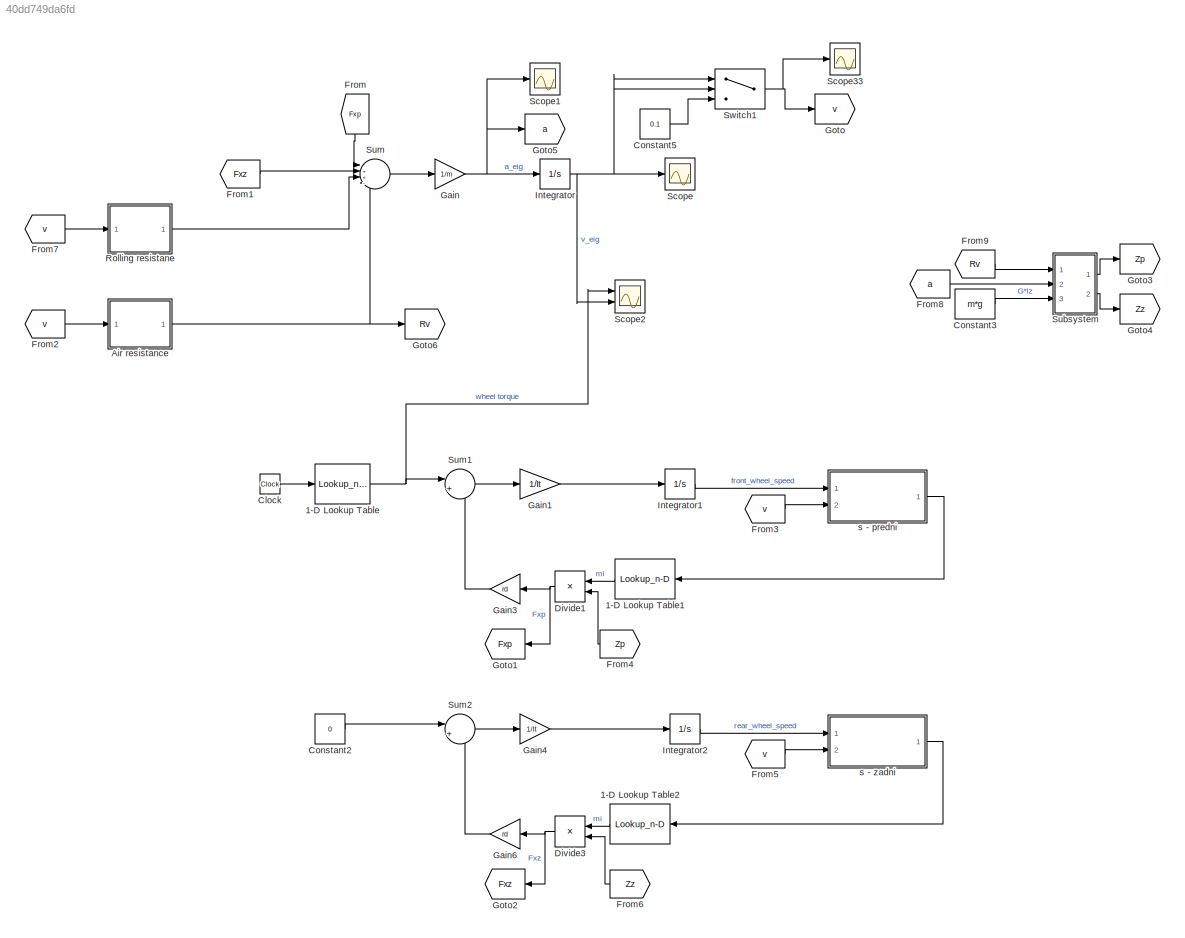
MODEL slx_40dd749da6fd
KIND model
CONFIG AbsTol = auto
CONFIG EnableMultiTasking = off
CONFIG FixedStep = auto
CONFIG MaxStep = auto
CONFIG MinStep = auto
CONFIG RelTol = 1e-9
CONFIG SampleTimeConstraint = Unconstrained
CONFIG SolverName = VariableStepAuto
CONFIG StartTime = 0.0
CONFIG StopTime = time
BLOCK [Lookup_n-D] 1-D Lookup Table
  BreakpointsForDimension1 = chosen_input_t
  InputPortMap = u0
  InternalRulePriority = Speed
  NumberOfTableDimensions = 1
  Ports = [1, 1]
  RndMeth = Simplest
  Table = chosen_input_T
BLOCK [Lookup_n-D] 1-D Lookup Table1
  BreakpointsForDimension1 = s
  InputPortMap = u0
  InternalRulePriority = Speed
  NameLocation = top
  NumberOfTableDimensions = 1
  Ports = [1, 1]
  RndMeth = Simplest
  Table = mi
BLOCK [Lookup_n-D] 1-D Lookup Table2
  BreakpointsForDimension1 = s
  InputPortMap = u0
  InternalRulePriority = Speed
  NameLocation = top
  NumberOfTableDimensions = 1
  Ports = [1, 1]
  RndMeth = Simplest
  Table = mi
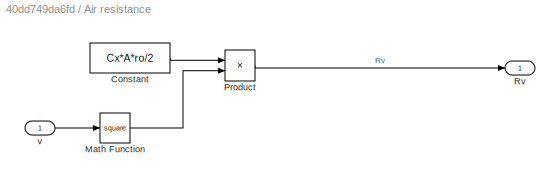
BLOCK [SubSystem] Air resistance
  Ports = [1, 1]
  RequestExecContextInheritance = off
BLOCK [Constant] Air resistance/Constant
  Value = Cx*A*ro/2
BLOCK [Math] Air resistance/Math Function
  Operator = square
  Ports = [1, 1]
BLOCK [Product] Air resistance/Product
  Ports = [2, 1]
BLOCK [Outport] Air resistance/Rv
BLOCK [Inport] Air resistance/v
BLOCK [Clock] Clock
BLOCK [Constant] Constant2
  Value = 0
BLOCK [Constant] Constant3
  Value = m*g
BLOCK [Constant] Constant5
  Value = 0.1
BLOCK [Product] Divide1
  Inputs = **
  NameLocation = top
  Ports = [2, 1]
BLOCK [Product] Divide3
  Inputs = **
  NameLocation = top
  Ports = [2, 1]
BLOCK [From] From
  GotoTag = Fxp
  NameLocation = left
BLOCK [From] From1
  GotoTag = Fxz
BLOCK [From] From2
  GotoTag = v
BLOCK [From] From3
  GotoTag = v
BLOCK [From] From4
  GotoTag = Zp
  NameLocation = top
BLOCK [From] From5
  GotoTag = v
BLOCK [From] From6
  GotoTag = Zz
  NameLocation = top
BLOCK [From] From7
  GotoTag = v
BLOCK [From] From8
  GotoTag = a
BLOCK [From] From9
  GotoTag = Rv
BLOCK [Gain] Gain
  Gain = 1/m
BLOCK [Gain] Gain1
  Gain = 1/It
BLOCK [Gain] Gain3
  Gain = rd
  NameLocation = top
BLOCK [Gain] Gain4
  Gain = 1/It
BLOCK [Gain] Gain6
  Gain = rd
  NameLocation = top
BLOCK [Goto] Goto
  GotoTag = v
BLOCK [Goto] Goto1
  GotoTag = Fxp
  NameLocation = top
BLOCK [Goto] Goto2
  GotoTag = Fxz
  NameLocation = top
BLOCK [Goto] Goto3
  GotoTag = Zp
BLOCK [Goto] Goto4
  GotoTag = Zz
BLOCK [Goto] Goto5
  GotoTag = a
BLOCK [Goto] Goto6
  GotoTag = Rv
BLOCK [Integrator] Integrator
  InitialCondition = v0_sim
  Ports = [1, 1]
  ZeroCross = off
BLOCK [Integrator] Integrator1
  InitialCondition = v0_sim/rd
  Ports = [1, 1]
BLOCK [Integrator] Integrator2
  InitialCondition = v0_sim/rd
  Ports = [1, 1]
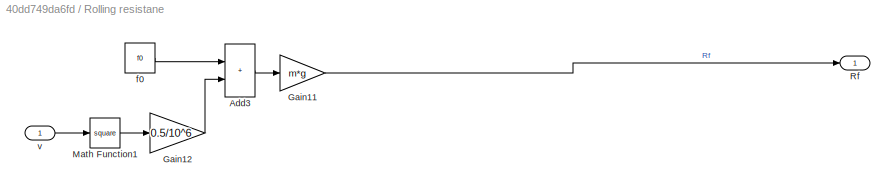
BLOCK [SubSystem] Rolling resistane
  Ports = [1, 1]
  RequestExecContextInheritance = off
BLOCK [Sum] Rolling resistane/Add3
  IconShape = rectangular
  Ports = [2, 1]
BLOCK [Gain] Rolling resistane/Gain11
  Gain = m*g
BLOCK [Gain] Rolling resistane/Gain12
  Gain = 0.5/10^6
BLOCK [Math] Rolling resistane/Math Function1
  Operator = square
  Ports = [1, 1]
BLOCK [Outport] Rolling resistane/Rf
BLOCK [Constant] Rolling resistane/f0
  Value = f0
BLOCK [Inport] Rolling resistane/v
BLOCK [Scope] Scope
  Floating = off
  NumInputPorts = 1
  Ports = [1]
  ScopeSpecificationString = Simulink.scopes.TimeScopeBlockCfg('CurrentConfiguration', extmgr.ConfigurationSet(extmgr.Configuration('Core','General UI',true),extmgr.Configuration('Core','Source UI',true),extmgr.Configuration('Sources','WiredSimulink',true,'DataLoggingVariableName','ScopeData1'),extmgr.Configuration('Visuals','Time Domain',true,'SerializedDisplays',{struct('MinYLimReal','-8.84334','MaxYLimReal','38.97146','YLa...<+1441ch>
BLOCK [Scope] Scope1
  Floating = off
  NumInputPorts = 1
  Ports = [1]
  ScopeSpecificationString = Simulink.scopes.TimeScopeBlockCfg('CurrentConfiguration', extmgr.ConfigurationSet(extmgr.Configuration('Core','General UI',true),extmgr.Configuration('Core','Source UI',true),extmgr.Configuration('Sources','WiredSimulink',true,'DataLoggingVariableName','ScopeData2'),extmgr.Configuration('Visuals','Time Domain',true,'SerializedDisplays',{struct('MinYLimReal','-0.67119','MaxYLimReal','3.73158','YLab...<+1412ch>
BLOCK [Scope] Scope2
  Floating = off
  NumInputPorts = 2
  Ports = [2]
  ScopeSpecificationString = Simulink.scopes.TimeScopeBlockCfg('CurrentConfiguration', extmgr.ConfigurationSet(extmgr.Configuration('Core','General UI',true),extmgr.Configuration('Core','Source UI',true),extmgr.Configuration('Sources','WiredSimulink',true),extmgr.Configuration('Visuals','Time Domain',true,'SerializedDisplays',{struct('MinYLimReal','-250.00000','MaxYLimReal','2250.00000','YLabelReal','','MinYLimMag',' 0.00000'...<+2058ch>
BLOCK [Scope] Scope33
  Floating = off
  NumInputPorts = 1
  Ports = [1]
  ScopeSpecificationString = Simulink.scopes.TimeScopeBlockCfg('CurrentConfiguration', extmgr.ConfigurationSet(extmgr.Configuration('Core','General UI',true),extmgr.Configuration('Core','Source UI',true),extmgr.Configuration('Sources','WiredSimulink',true,'DataLoggingVariableName','ScopeData28'),extmgr.Configuration('Visuals','Time Domain',true,'SerializedDisplays',{struct('MinYLimReal','-3.05838','MaxYLimReal','28.52545','YL...<+1444ch>
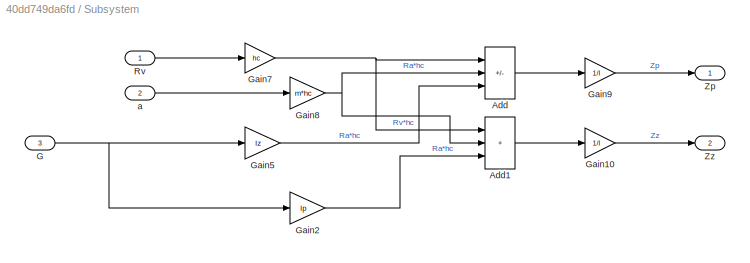
BLOCK [SubSystem] Subsystem
  Ports = [3, 2]
  RequestExecContextInheritance = off
BLOCK [Sum] Subsystem/Add
  IconShape = rectangular
  Inputs = --+
  Ports = [3, 1]
BLOCK [Sum] Subsystem/Add1
  IconShape = rectangular
  Inputs = +++
  Ports = [3, 1]
BLOCK [Inport] Subsystem/G
  Port = 3
BLOCK [Gain] Subsystem/Gain10
  Gain = 1/l
BLOCK [Gain] Subsystem/Gain2
  Gain = lp
BLOCK [Gain] Subsystem/Gain5
  Gain = lz
BLOCK [Gain] Subsystem/Gain7
  Gain = hc
BLOCK [Gain] Subsystem/Gain8
  Gain = m*hc
BLOCK [Gain] Subsystem/Gain9
  Gain = 1/l
BLOCK [Inport] Subsystem/Rv
BLOCK [Outport] Subsystem/Zp
BLOCK [Outport] Subsystem/Zz
  Port = 2
BLOCK [Inport] Subsystem/a
  Port = 2
BLOCK [Sum] Sum
  Inputs = |++--
  Ports = [4, 1]
BLOCK [Sum] Sum1
  Inputs = |+-
  Ports = [2, 1]
BLOCK [Sum] Sum2
  Inputs = |+-
  Ports = [2, 1]
BLOCK [Switch] Switch1
  Criteria = u2 > Threshold
  InputSameDT = off
  SaturateOnIntegerOverflow = off
  Threshold = 0.1
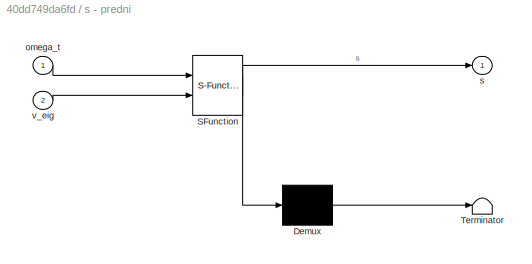
BLOCK [SubSystem] s - predni
  ErrorFcn = Stateflow.Translate.translate
  PermitHierarchicalResolution = ExplicitOnly
  Ports = [2, 1]
  RequestExecContextInheritance = off
  SFBlockType = MATLAB Function
  TreatAsAtomicUnit = on
BLOCK [Demux] s - predni/ Demux 
  Outputs = 1
  Ports = [1, 1]
BLOCK [S-Function] s - predni/ SFunction 
  EnableBusSupport = on
  FunctionName = sf_sfun
  PortCounts = [2 2]
  Ports = [2, 2]
  SFcnIsStateOwnerBlock = off
  SFunctionDeploymentMode = off
  Tag = Stateflow S-Function 2
BLOCK [Terminator] s - predni/ Terminator 
BLOCK [Inport] s - predni/omega_t
BLOCK [Outport] s - predni/s
BLOCK [Inport] s - predni/v_eig
  Port = 2
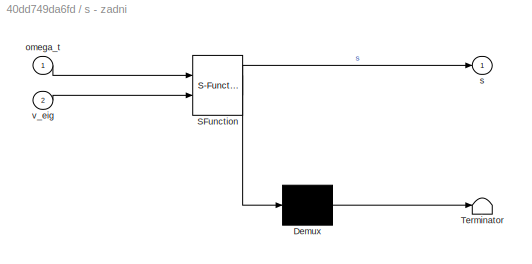
BLOCK [SubSystem] s - zadni
  ErrorFcn = Stateflow.Translate.translate
  PermitHierarchicalResolution = ExplicitOnly
  Ports = [2, 1]
  RequestExecContextInheritance = off
  SFBlockType = MATLAB Function
  TreatAsAtomicUnit = on
BLOCK [Demux] s - zadni/ Demux 
  Outputs = 1
  Ports = [1, 1]
BLOCK [S-Function] s - zadni/ SFunction 
  EnableBusSupport = on
  FunctionName = sf_sfun
  PortCounts = [2 2]
  Ports = [2, 2]
  SFcnIsStateOwnerBlock = off
  SFunctionDeploymentMode = off
  Tag = Stateflow S-Function 1
BLOCK [Terminator] s - zadni/ Terminator 
BLOCK [Inport] s - zadni/omega_t
BLOCK [Outport] s - zadni/s
BLOCK [Inport] s - zadni/v_eig
  Port = 2
LINE 1-D Lookup Table1:1 -> Divide1:1
LINE 1-D Lookup Table2:1 -> Divide3:1
NET 1-D Lookup Table:1 -> Scope2:1, Sum1:1
LINE Air resistance/Constant:1 -> Air resistance/Product:1
LINE Air resistance/Math Function:1 -> Air resistance/Product:2
LINE Air resistance/Product:1 -> Air resistance/Rv:1
LINE Air resistance/v:1 -> Air resistance/Math Function:1
NET Air resistance:1 -> Goto6:1, Sum:4
LINE Clock:1 -> 1-D Lookup Table:1
LINE Constant2:1 -> Sum2:1
LINE Constant3:1 -> Subsystem:3
LINE Constant5:1 -> Switch1:3
NET Divide1:1 -> Gain3:1, Goto1:1
NET Divide3:1 -> Gain6:1, Goto2:1
LINE From1:1 -> Sum:2
LINE From2:1 -> Air resistance:1
LINE From3:1 -> s - predni:2
LINE From4:1 -> Divide1:2
LINE From5:1 -> s - zadni:2
LINE From6:1 -> Divide3:2
LINE From7:1 -> Rolling resistane:1
LINE From8:1 -> Subsystem:2
LINE From9:1 -> Subsystem:1
LINE From:1 -> Sum:1
LINE Gain1:1 -> Integrator1:1
LINE Gain3:1 -> Sum1:2
LINE Gain4:1 -> Integrator2:1
LINE Gain6:1 -> Sum2:2
NET Gain:1 -> Goto5:1, Integrator:1, Scope1:1
LINE Integrator1:1 -> s - predni:1
LINE Integrator2:1 -> s - zadni:1
NET Integrator:1 -> Scope2:2, Scope:1, Switch1:1, Switch1:2
LINE Rolling resistane/Add3:1 -> Rolling resistane/Gain11:1
LINE Rolling resistane/Gain11:1 -> Rolling resistane/Rf:1
LINE Rolling resistane/Gain12:1 -> Rolling resistane/Add3:2
LINE Rolling resistane/Math Function1:1 -> Rolling resistane/Gain12:1
LINE Rolling resistane/f0:1 -> Rolling resistane/Add3:1
LINE Rolling resistane/v:1 -> Rolling resistane/Math Function1:1
LINE Rolling resistane:1 -> Sum:3
LINE Subsystem/Add1:1 -> Subsystem/Gain10:1
LINE Subsystem/Add:1 -> Subsystem/Gain9:1
NET Subsystem/G:1 -> Subsystem/Gain2:1, Subsystem/Gain5:1
LINE Subsystem/Gain10:1 -> Subsystem/Zz:1
LINE Subsystem/Gain2:1 -> Subsystem/Add1:3
LINE Subsystem/Gain5:1 -> Subsystem/Add:3
NET Subsystem/Gain7:1 -> Subsystem/Add1:1, Subsystem/Add:1
NET Subsystem/Gain8:1 -> Subsystem/Add1:2, Subsystem/Add:2
LINE Subsystem/Gain9:1 -> Subsystem/Zp:1
LINE Subsystem/Rv:1 -> Subsystem/Gain7:1
LINE Subsystem/a:1 -> Subsystem/Gain8:1
LINE Subsystem:1 -> Goto3:1
LINE Subsystem:2 -> Goto4:1
LINE Sum1:1 -> Gain1:1
LINE Sum2:1 -> Gain4:1
LINE Sum:1 -> Gain:1
NET Switch1:1 -> Goto:1, Scope33:1
LINE s - predni:1 -> 1-D Lookup Table1:1
LINE s - zadni:1 -> 1-D Lookup Table2:1
note: NET lines group one-source signal fan-out (src -> all destinations, sorted); 1:1 wires keep LINE
CHART s - predni states=1 transitions=1
  STATE_LABEL 'eML_blk_kernel()'
  STATE_LABEL 'SCRIPT:\nfunction s = fcn(omega_t, v_eig)\nrd = 0.3;\nif omega_t*rd >= v_eig\n    s = (omega_t*rd - v_eig)/(omega_t*rd);\nelse\n    s = (omega_t*rd - v_eig)/v_eig;\nend\n'
CHART s - zadni states=1 transitions=1
  STATE_LABEL 'eML_blk_kernel()'
  STATE_LABEL 'SCRIPT:\nfunction s = fcn(omega_t, v_eig)\nrd = 0.3;\nif omega_t*rd >= v_eig\n    s = (omega_t*rd - v_eig)/(omega_t*rd);\nelse\n    s = (omega_t*rd - v_eig)/v_eig;\nend\n'
CHART  states=0 transitions=0
CHART  states=0 transitions=0
